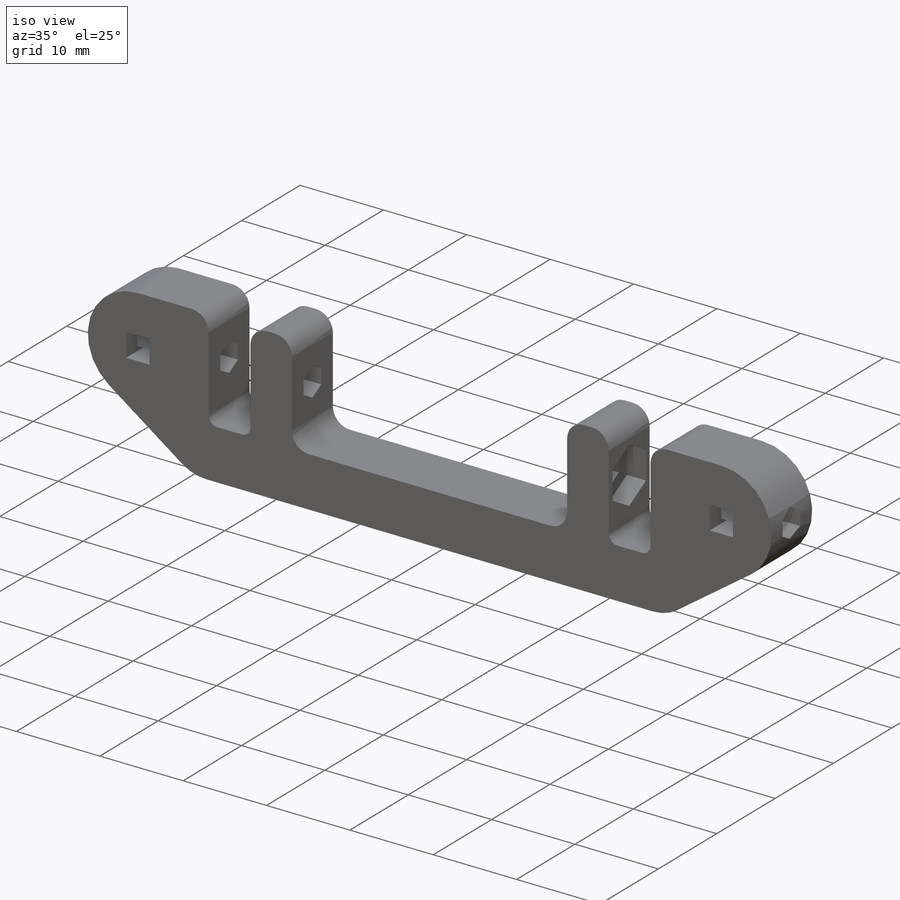
[diagram: iso view]
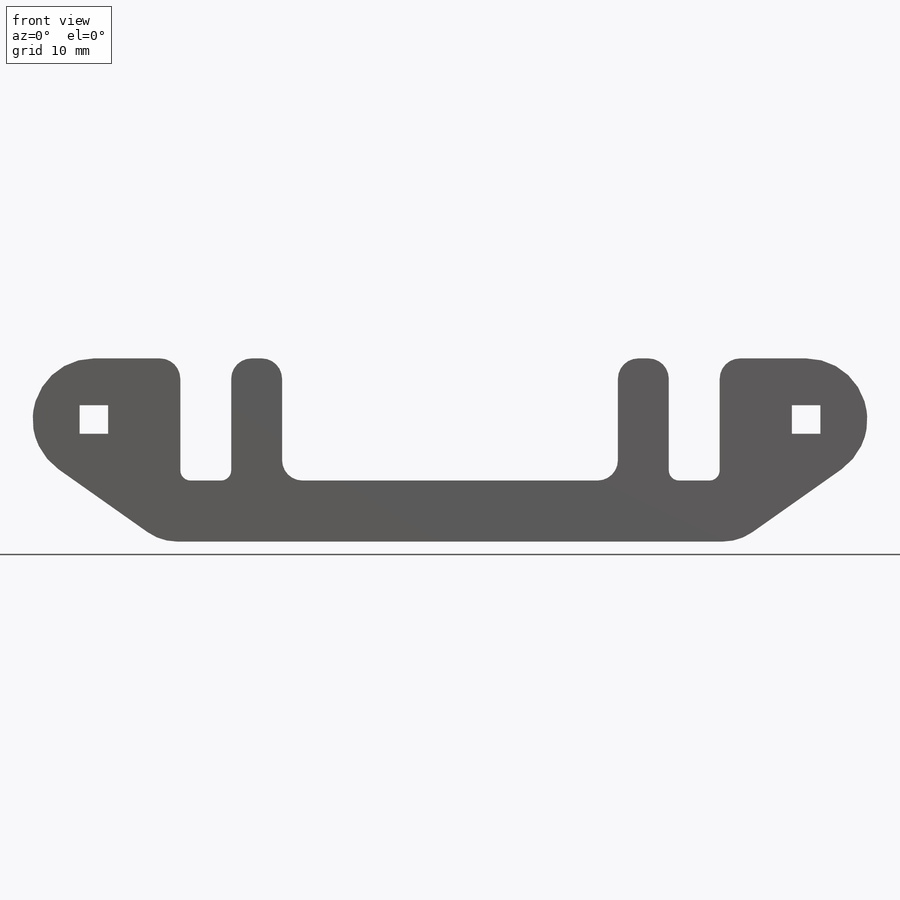
[diagram: front view]
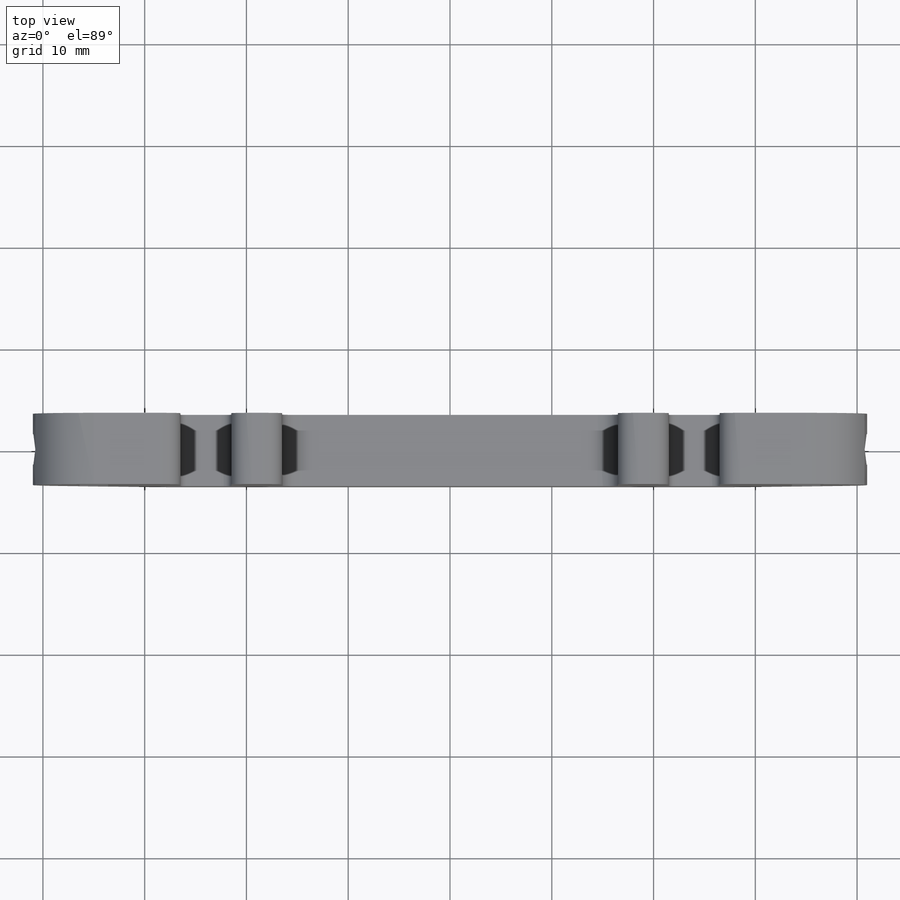
[diagram: top view]
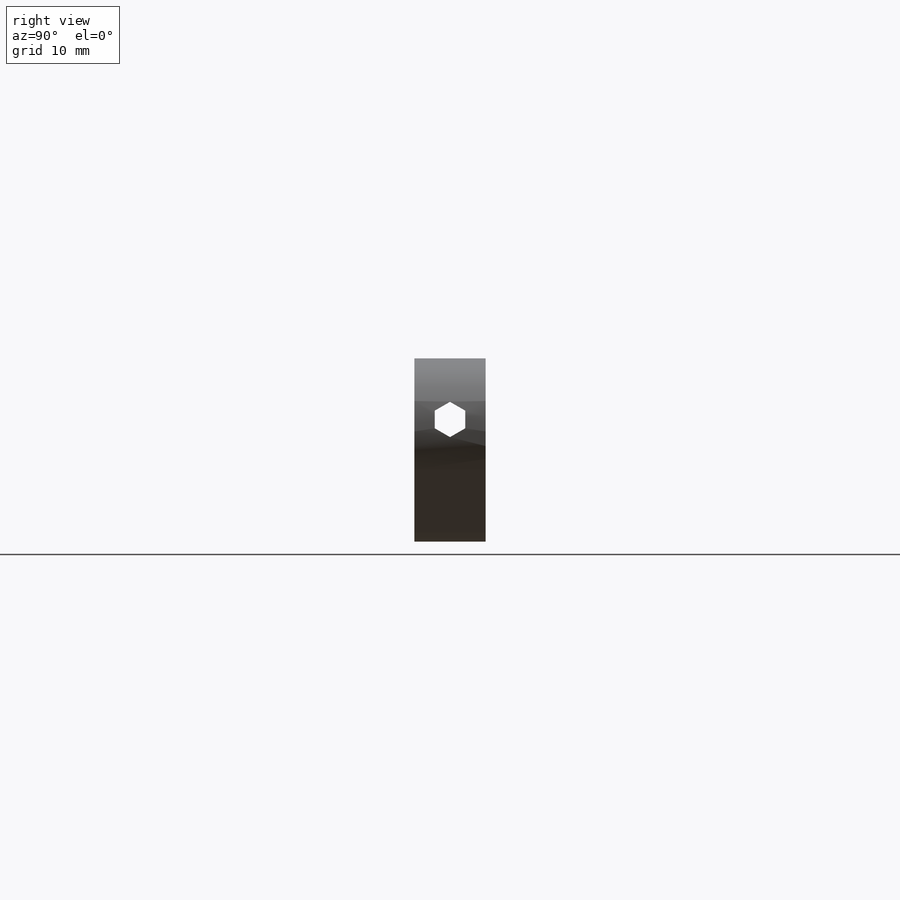
[diagram: right view]
SOLIDWORKS PART (.sldprt)
format: sldprt  version: not decoded by parser v0  size: 321,536 bytes
history: native  units: mm
features: sketch x3, mirror x3, fillet x3, cut_extrude x2, material x1, extrude x1 (+11 scaffold rows collapsed)
feature tree (24):
  scaffold x11  (default folders/planes/origin — collapsed)
  material  "Material <not specified>"
  sketch  "Sketch1"  dims[c1.D1=~28.510021mm c1.D7=15.0mm c1.D9=2.8mm c2.D7=~5.656625mm c2.D1=5.0mm c2.D2=5.0mm c2.D3=48.0mm c2.D4=12.0mm c2.D5=28.0mm c2.D6=6.0mm c2.D8=6.0mm c2.D9=20.0mm c2.D10=~4.849742mm c3.D5=80.0mm c3.D3=53.5mm c3.D7=~7.352721mm c4.D5=70.0mm c4.D3=21.5mm]
  extrude  "Boss-Extrude1"  Depth=7mm
  sketch  "Sketch2"  dims[D1=3.0mm D2=6.0mm]
  cut_extrude  "Cut-Extrude1"  [1 undecoded]
  sketch  "Sketch3"  dims[D1=5.75mm]
  cut_extrude  "Cut-Extrude2"  Depth=2.3mm
  mirror  "Mirror1"
  fillet  "Fillet1"  Radius=2mm
  fillet  "Fillet2"  Radius=5mm
  mirror  "Axis2"
  mirror  "Axis3"
  fillet  "Fillet3"  Radius=1mm
decode coverage: 8 of 12 modeling features carry decoded parameters
note: ~ marks probable driven/reference dimensions
note: 1 parameter value undecoded
note: suppression state not decoded; provenance and decode notes live in map.json
